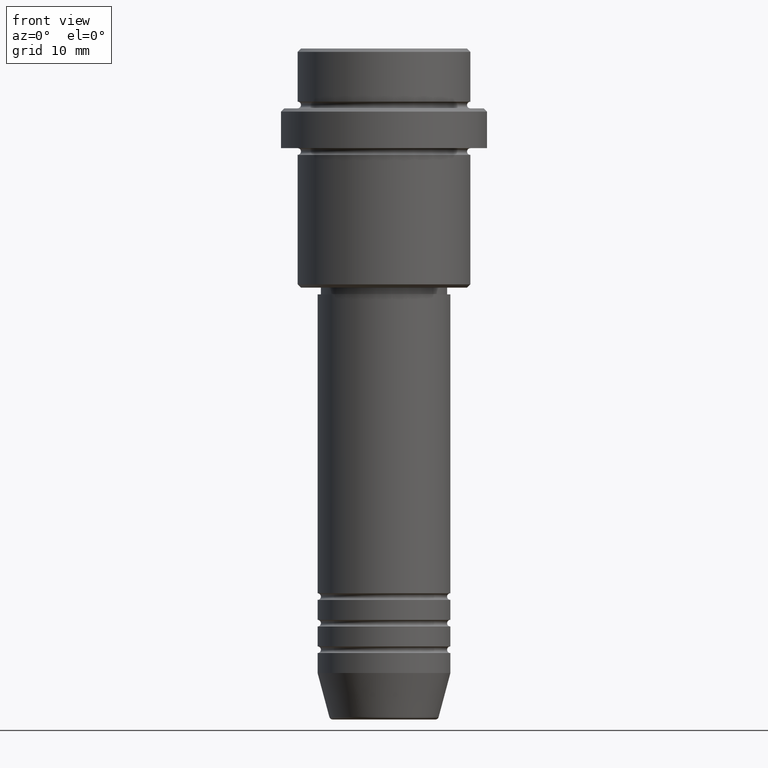
[diagram: clean part render]
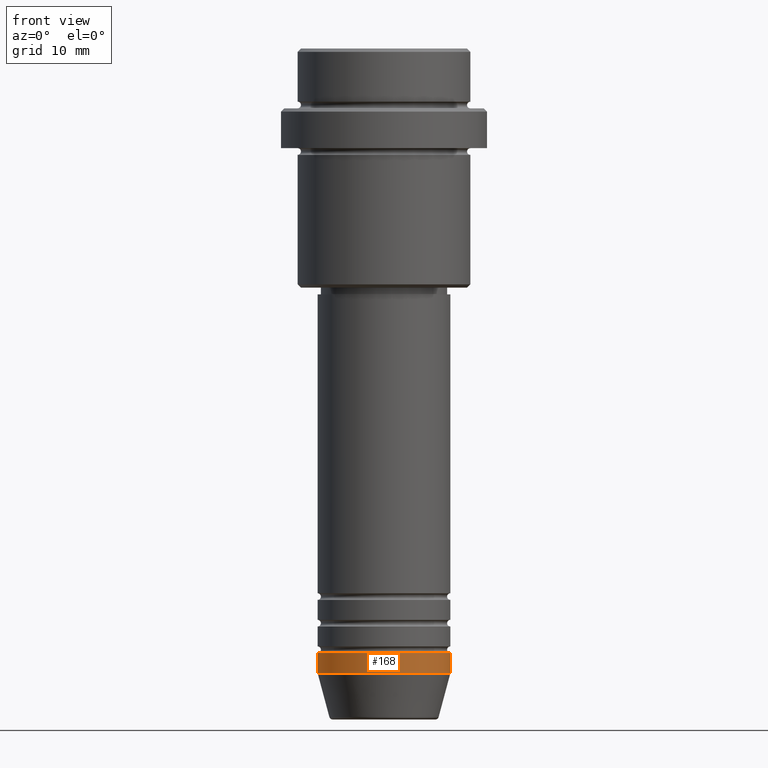
[diagram: same view with one face highlighted and labeled with its STEP entity id]
A machine part, front view. The second image highlights one B-rep face of the part: STEP entity #168.
In plain terms, the highlighted cylindrical surface (partial cylindrical patch) has radius 10 mm, axis along (-0, -0, 1).
Its self-contained STEP definition (entity closure, byte-faithful):
#2 = VERTEX_POINT ( 'NONE', #693 ) ;
#48 = DIRECTION ( 'NONE',  ( -0.000000000000000000, -0.000000000000000000, 1.000000000000000000 ) ) ;
#73 = DIRECTION ( 'NONE',  ( -0.000000000000000000, -0.000000000000000000, 1.000000000000000000 ) ) ;
#119 = CIRCLE ( 'NONE', #661, 10.00000000000000000 ) ;
#123 = VERTEX_POINT ( 'NONE', #826 ) ;
#131 = DIRECTION ( 'NONE',  ( 1.000000000000000000, 0.000000000000000000, 0.000000000000000000 ) ) ;
#140 = DIRECTION ( 'NONE',  ( -0.000000000000000000, -0.000000000000000000, 1.000000000000000000 ) ) ;
#160 = VECTOR ( 'NONE', #48, 1000.000000000000000 ) ;
#168 = ADVANCED_FACE ( 'NONE', ( #260 ), #1045, .T. ) ;
#197 = AXIS2_PLACEMENT_3D ( 'NONE', #1203, #883, #1109 ) ;
#218 = EDGE_CURVE ( 'NONE', #2, #468, #615, .T. ) ;
#260 = FACE_OUTER_BOUND ( 'NONE', #711, .T. ) ;
#355 = ORIENTED_EDGE ( 'NONE', *, *, #1082, .F. ) ;
#388 = DIRECTION ( 'NONE',  ( -0.000000000000000000, -0.000000000000000000, 1.000000000000000000 ) ) ;
#468 = VERTEX_POINT ( 'NONE', #1034 ) ;
#482 = CARTESIAN_POINT ( 'NONE',  ( -10.00000000000000000, 1.224646799147353256E-15, -91.00000000000000000 ) ) ;
#484 = CARTESIAN_POINT ( 'NONE',  ( 0.000000000000000000, 0.000000000000000000, 0.000000000000000000 ) ) ;
#570 = VERTEX_POINT ( 'NONE', #482 ) ;
#615 = LINE ( 'NONE', #1376, #1392 ) ;
#661 = AXIS2_PLACEMENT_3D ( 'NONE', #697, #140, #131 ) ;
#693 = CARTESIAN_POINT ( 'NONE',  ( 10.00000000000000000, 0.000000000000000000, -94.00000000000000000 ) ) ;
#697 = CARTESIAN_POINT ( 'NONE',  ( 0.000000000000000000, 0.000000000000000000, -91.00000000000000000 ) ) ;
#711 = EDGE_LOOP ( 'NONE', ( #1214, #1327, #1265, #355 ) ) ;
#723 = LINE ( 'NONE', #803, #160 ) ;
#752 = AXIS2_PLACEMENT_3D ( 'NONE', #484, #73, #1049 ) ;
#803 = CARTESIAN_POINT ( 'NONE',  ( -10.00000000000000000, 1.224646799147353256E-15, 0.000000000000000000 ) ) ;
#826 = CARTESIAN_POINT ( 'NONE',  ( -10.00000000000000000, 1.224646799147353256E-15, -94.00000000000000000 ) ) ;
#883 = DIRECTION ( 'NONE',  ( -0.000000000000000000, -0.000000000000000000, 1.000000000000000000 ) ) ;
#921 = CIRCLE ( 'NONE', #197, 10.00000000000000000 ) ;
#1023 = EDGE_CURVE ( 'NONE', #123, #570, #723, .T. ) ;
#1034 = CARTESIAN_POINT ( 'NONE',  ( 10.00000000000000000, 0.000000000000000000, -91.00000000000000000 ) ) ;
#1045 = CYLINDRICAL_SURFACE ( 'NONE', #752, 10.00000000000000000 ) ;
#1049 = DIRECTION ( 'NONE',  ( 1.000000000000000000, 0.000000000000000000, 0.000000000000000000 ) ) ;
#1082 = EDGE_CURVE ( 'NONE', #570, #468, #119, .T. ) ;
#1109 = DIRECTION ( 'NONE',  ( 1.000000000000000000, 0.000000000000000000, 0.000000000000000000 ) ) ;
#1203 = CARTESIAN_POINT ( 'NONE',  ( 0.000000000000000000, 0.000000000000000000, -94.00000000000000000 ) ) ;
#1214 = ORIENTED_EDGE ( 'NONE', *, *, #1023, .F. ) ;
#1265 = ORIENTED_EDGE ( 'NONE', *, *, #218, .T. ) ;
#1299 = EDGE_CURVE ( 'NONE', #123, #2, #921, .T. ) ;
#1327 = ORIENTED_EDGE ( 'NONE', *, *, #1299, .T. ) ;
#1376 = CARTESIAN_POINT ( 'NONE',  ( 10.00000000000000000, 0.000000000000000000, 0.000000000000000000 ) ) ;
#1392 = VECTOR ( 'NONE', #388, 1000.000000000000000 ) ;